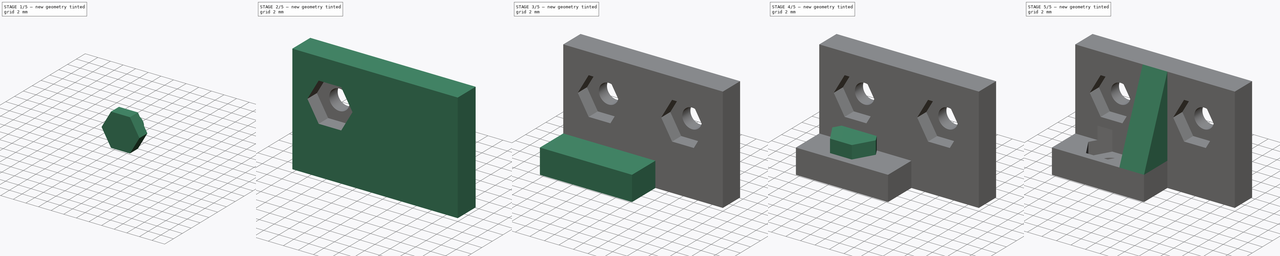
[diagram: build sequence overview — one tinted view per stage of 5, left to right]
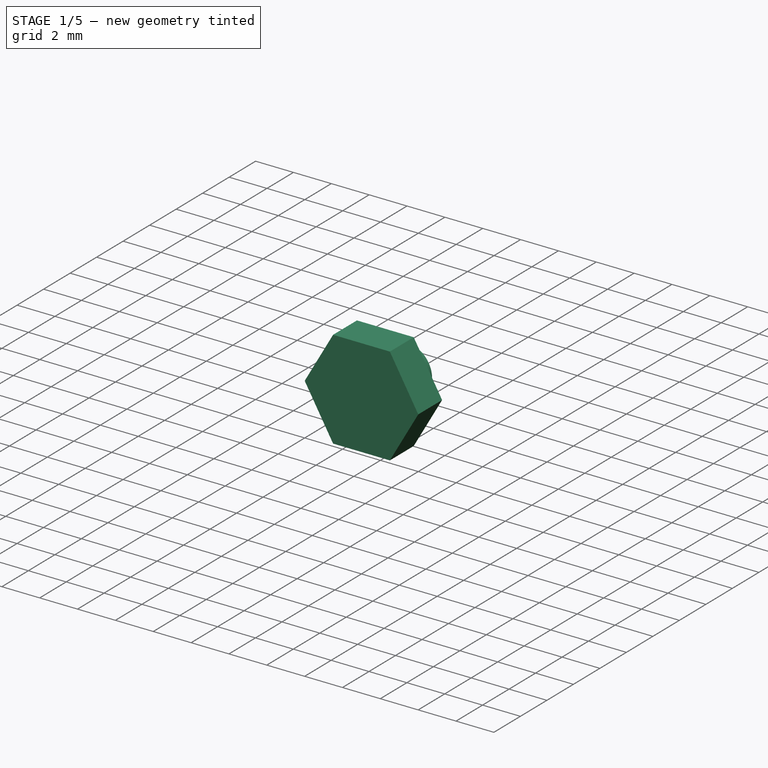
[diagram: stage 1 of 5 — iso view after this stage's code; geometry added in this stage tinted green]
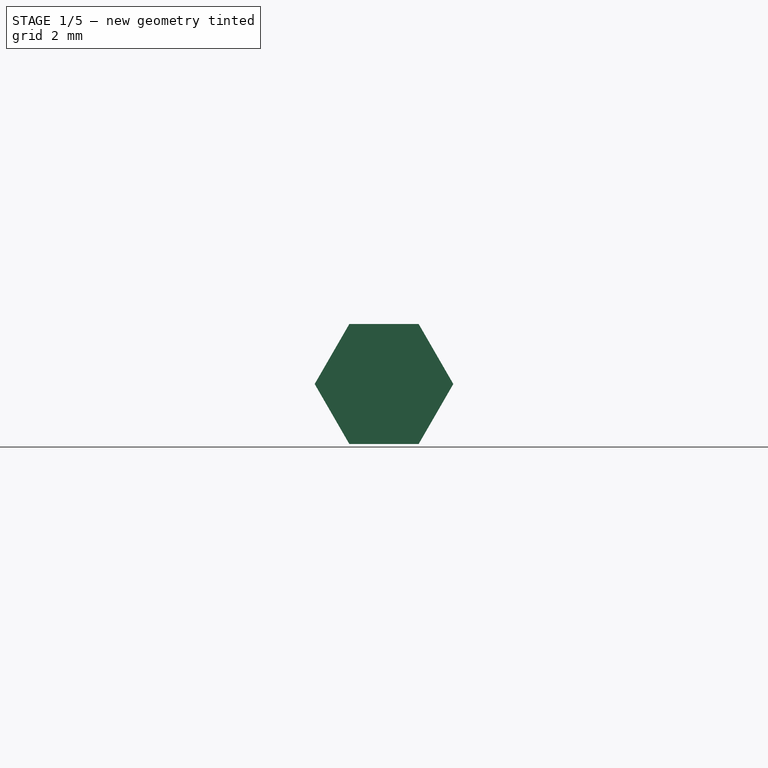
[diagram: stage 1 of 5 — front view after this stage's code; geometry added in this stage tinted green]
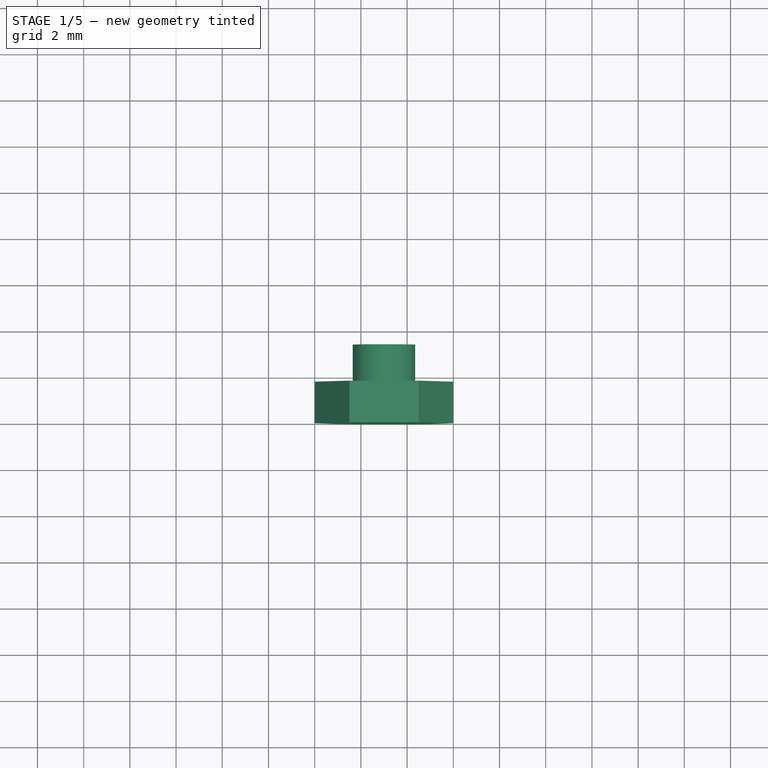
[diagram: stage 1 of 5 — top view after this stage's code; geometry added in this stage tinted green]
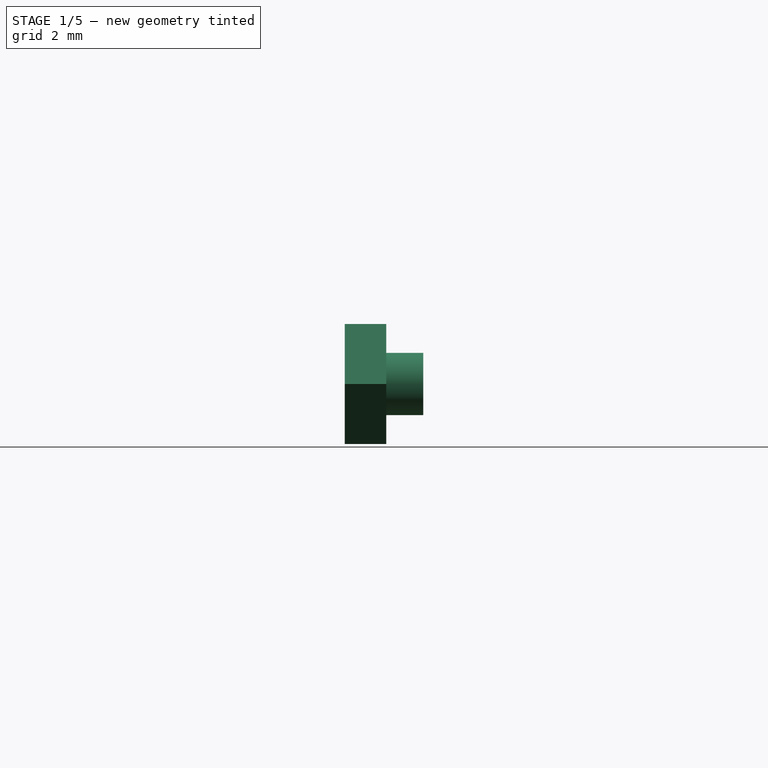
[diagram: stage 1 of 5 — right view after this stage's code; geometry added in this stage tinted green]
FCSTD DOCUMENT  (FreeCAD 0.20R29410 (Git))
Label: Podule Bracket Left Hand Side 3.4mm Thick - Wider Hex - 0.5mm Offset
License: All rights reserved
LicenseURL: http://en.wikipedia.org/wiki/All_rights_reserved
objects: Part::MultiFuse×5, Sketcher::SketchObject×4, Part::Extrusion×4, Part::Cylinder×3, Part::Cut×3, Part::Box×2, App::Part×1
note: 21 computed .brp shape members not serialized (recipe doc carries the construction recipe); baked Part::Feature solids carry a one-line shape summary decoded from their .brp

FEATURE [Part::Cylinder] Cylinder
  Angle = 360
  AttacherType = Attacher::AttachEngine3D
  FirstAngle = 0
  Height = 3.4
  Placement = pos=(5,3.4,9) rot=(1,0,0;1.5708rad)
  Radius = 1.35
  SecondAngle = 0
FEATURE [Sketcher::SketchObject] Sketch001
  FullyConstrained = false
  Placement = pos=(5,1.8,9) rot=(1,0,0;1.5708rad)
  sketch-geometry (7):
    g0: LineSegment StartX=3 StartY=0 StartZ=0 EndX=1.5 EndY=2.59808 EndZ=0
    g1: LineSegment StartX=1.5 StartY=2.59808 StartZ=0 EndX=-1.5 EndY=2.59808 EndZ=0
    g2: LineSegment StartX=-1.5 StartY=2.59808 StartZ=0 EndX=-3 EndY=0 EndZ=0
    g3: LineSegment StartX=-3 StartY=0 StartZ=0 EndX=-1.5 EndY=-2.59808 EndZ=0
    g4: LineSegment StartX=-1.5 StartY=-2.59808 StartZ=0 EndX=1.5 EndY=-2.59808 EndZ=0
    g5: LineSegment StartX=1.5 StartY=-2.59808 StartZ=0 EndX=3 EndY=0 EndZ=0
    g6: Circle CenterX=0 CenterY=0 CenterZ=0 NormalX=0 NormalY=0 NormalZ=1 AngleXU=0 Radius=3
  constraints (15):
    c: Coincident(g0,g1)
    c: Coincident(g1,g2)
    c: Coincident(g2,g3)
    c: Coincident(g3,g4)
    c: Coincident(g4,g5)
    c: Coincident(g5,g0)
    c: Equal(g0, g1-g5) x5
    c: PointOnObject(g0,g6)
    c: PointOnObject(g1,g6)
    c: PointOnObject(g2,g6)
    c: PointOnObject(g3,g6)
    c: PointOnObject(g4,g6)
    c: PointOnObject(g5,g6)
    c: Coincident(g6,g-1)
    c: PointOnObject(g5,g-1)
FEATURE [Part::Extrusion] Extrude001
  Base = -> Sketch001
  Dir = (0,-1,-3e-16)
  DirMode = 2
  FaceMakerClass = Part::FaceMakerBullseye
  LengthFwd = 1.8
  LengthRev = 0
  Solid = true
  Symmetric = false
FEATURE [App::Part] Part
  Group = -> [Box,Box001,Sketch,Extrude,Cylinder,Cylinder002,Sketch001,Extrude001]
  Origin = -> Origin
FEATURE [Part::MultiFuse] Fusion  label="Hole01"
  Shapes = -> [Cylinder,Extrude001]
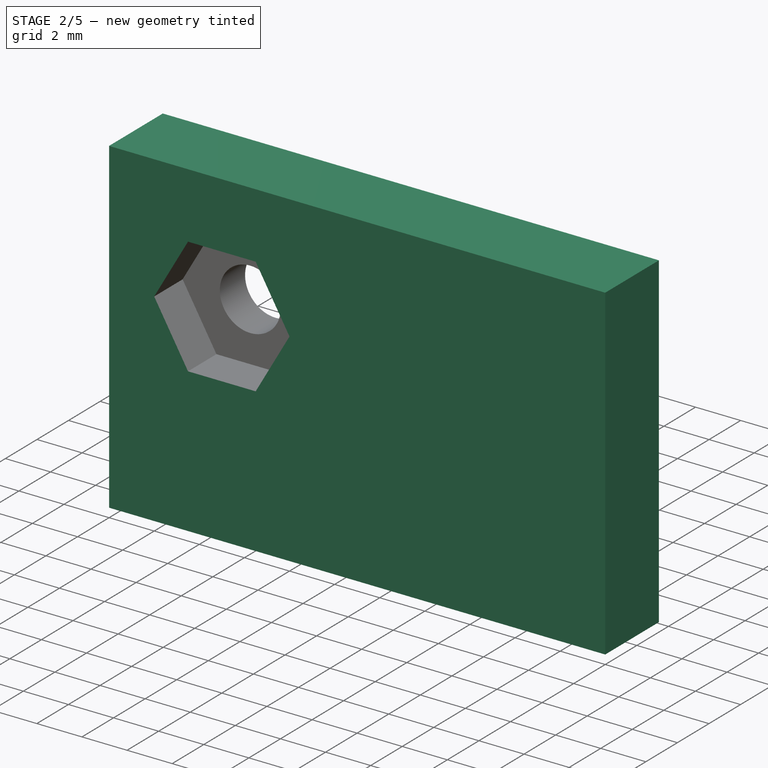
[diagram: stage 2 of 5 — iso view after this stage's code; geometry added in this stage tinted green]
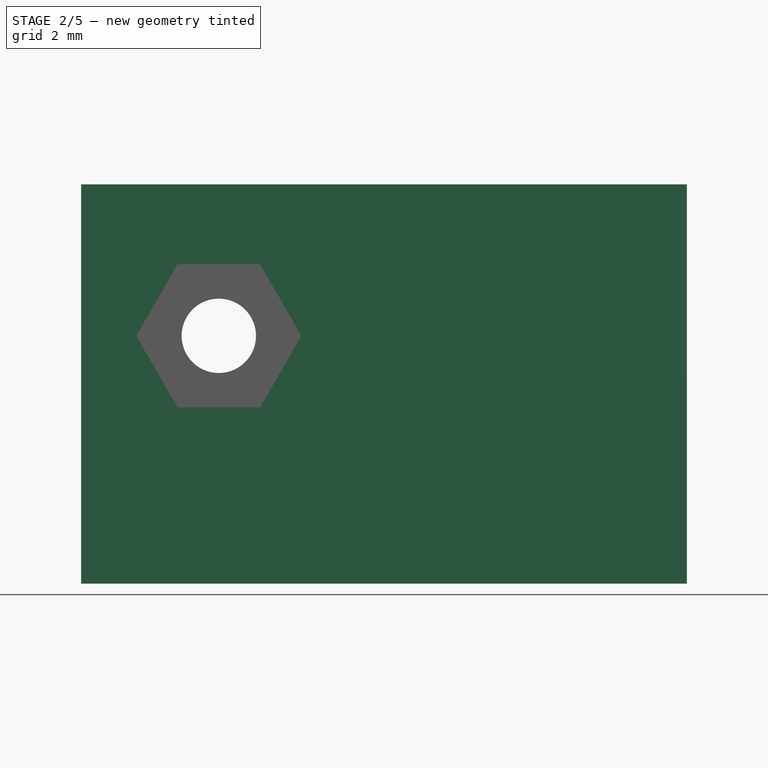
[diagram: stage 2 of 5 — front view after this stage's code; geometry added in this stage tinted green]
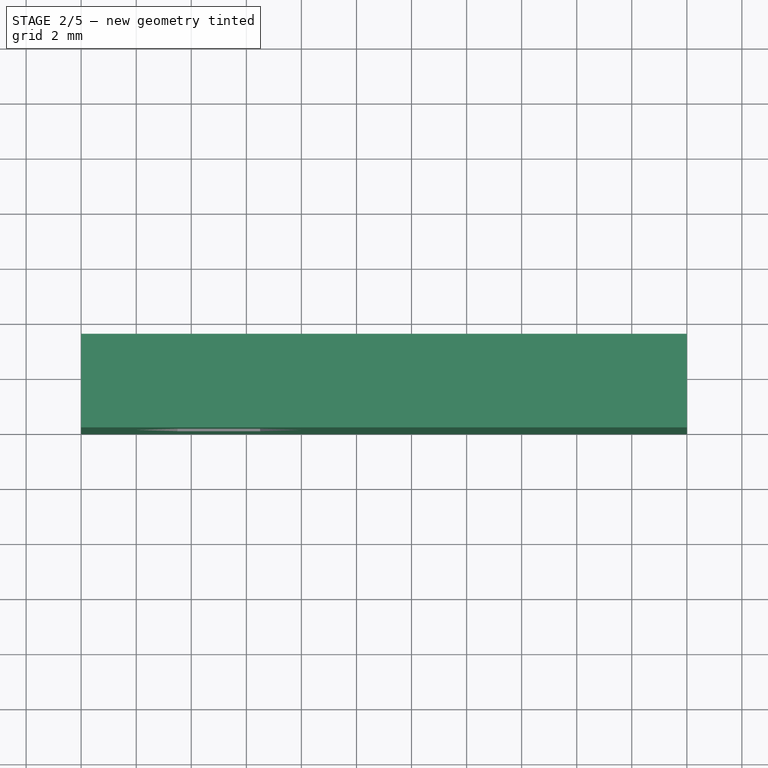
[diagram: stage 2 of 5 — top view after this stage's code; geometry added in this stage tinted green]
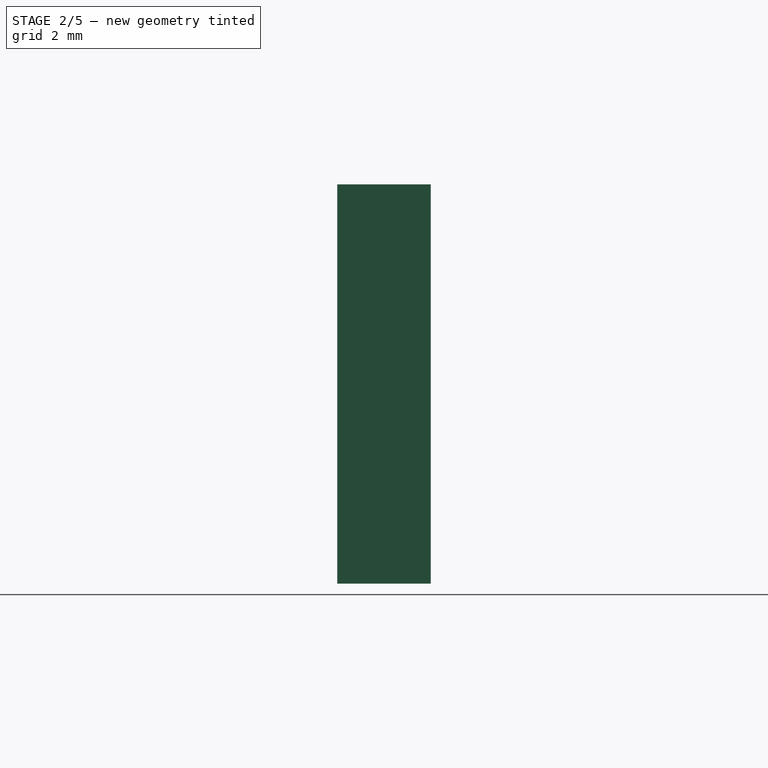
[diagram: stage 2 of 5 — right view after this stage's code; geometry added in this stage tinted green]
FEATURE [Part::Box] Box  label="Rear Face"
  AttacherType = Attacher::AttachEngine3D
  Height = 14.5
  Length = 22
  Width = 3.4
FEATURE [Part::Cylinder] Cylinder003
  Angle = 360
  AttacherType = Attacher::AttachEngine3D
  FirstAngle = 0
  Height = 3.4
  Placement = pos=(16.5,3.4,9) rot=(1,0,0;1.5708rad)
  Radius = 1.35
  SecondAngle = 0
FEATURE [Sketcher::SketchObject] Sketch002
  FullyConstrained = false
  Placement = pos=(16.5,1.8,9) rot=(1,0,0;1.5708rad)
  sketch-geometry (7):
    g0: LineSegment StartX=3 StartY=0 StartZ=0 EndX=1.5 EndY=2.59808 EndZ=0
    g1: LineSegment StartX=1.5 StartY=2.59808 StartZ=0 EndX=-1.5 EndY=2.59808 EndZ=0
    g2: LineSegment StartX=-1.5 StartY=2.59808 StartZ=0 EndX=-3 EndY=0 EndZ=0
    g3: LineSegment StartX=-3 StartY=0 StartZ=0 EndX=-1.5 EndY=-2.59808 EndZ=0
    g4: LineSegment StartX=-1.5 StartY=-2.59808 StartZ=0 EndX=1.5 EndY=-2.59808 EndZ=0
    g5: LineSegment StartX=1.5 StartY=-2.59808 StartZ=0 EndX=3 EndY=0 EndZ=0
    g6: Circle CenterX=0 CenterY=0 CenterZ=0 NormalX=0 NormalY=0 NormalZ=1 AngleXU=0 Radius=3
  constraints (15):
    c: Coincident(g0,g1)
    c: Coincident(g1,g2)
    c: Coincident(g2,g3)
    c: Coincident(g3,g4)
    c: Coincident(g4,g5)
    c: Coincident(g5,g0)
    c: Equal(g0, g1-g5) x5
    c: PointOnObject(g0,g6)
    c: PointOnObject(g1,g6)
    c: PointOnObject(g2,g6)
    c: PointOnObject(g3,g6)
    c: PointOnObject(g4,g6)
    c: PointOnObject(g5,g6)
    c: Coincident(g6,g-1)
    c: PointOnObject(g5,g-1)
FEATURE [Part::Extrusion] Extrude002
  Base = -> Sketch002
  Dir = (0,-1,2e-16)
  DirMode = 2
  FaceMakerClass = Part::FaceMakerBullseye
  LengthFwd = 1.8
  LengthRev = 0
  Solid = true
  Symmetric = false
FEATURE [Part::Cut] Cut
  Base = -> Box
  Tool = -> Fusion
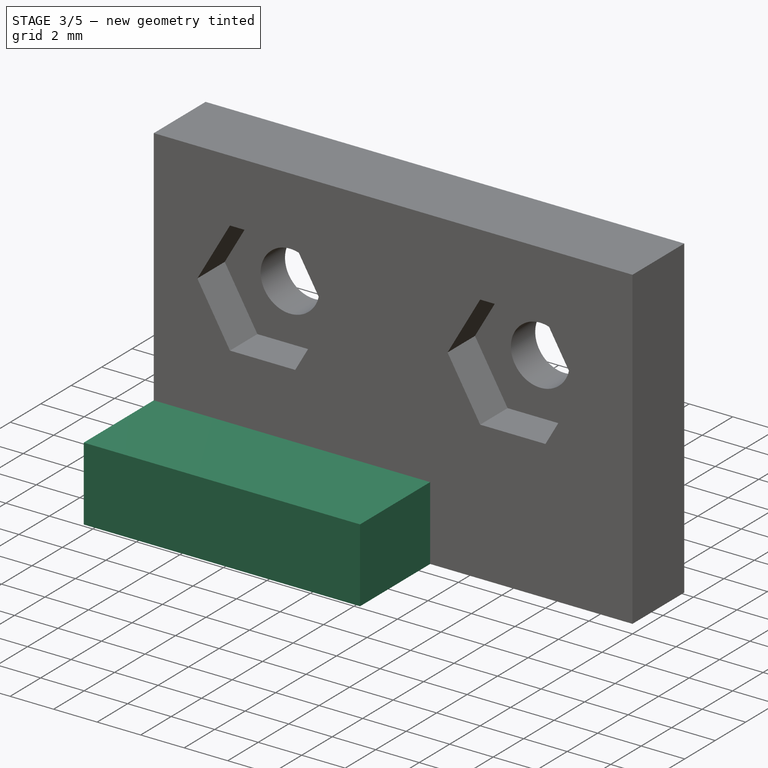
[diagram: stage 3 of 5 — iso view after this stage's code; geometry added in this stage tinted green]
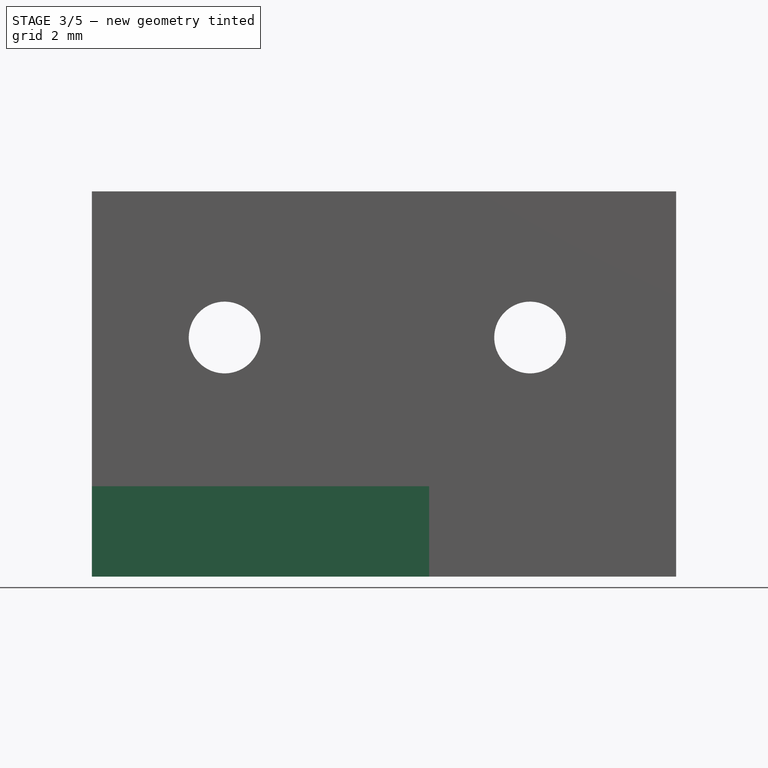
[diagram: stage 3 of 5 — front view after this stage's code; geometry added in this stage tinted green]
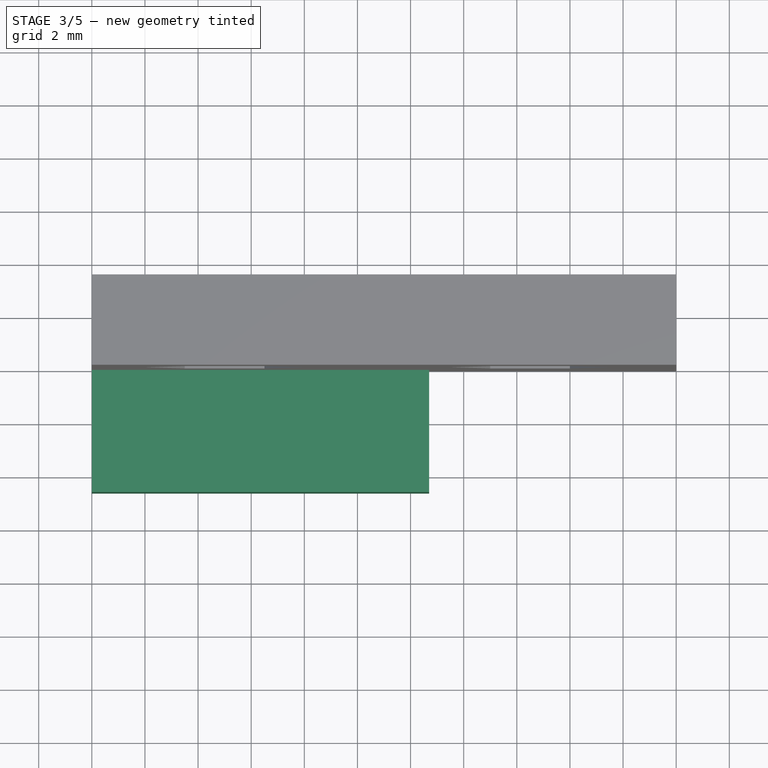
[diagram: stage 3 of 5 — top view after this stage's code; geometry added in this stage tinted green]
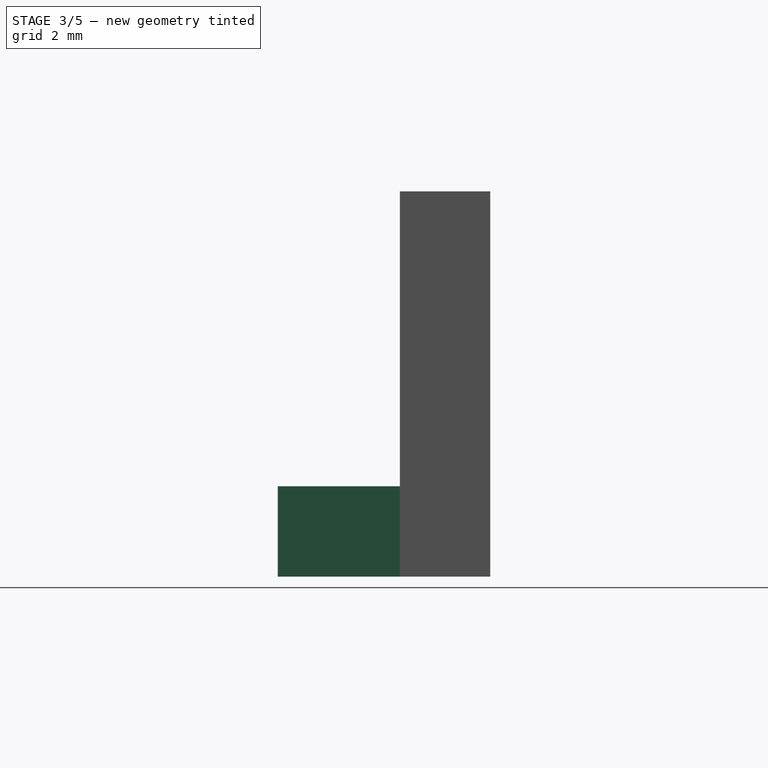
[diagram: stage 3 of 5 — right view after this stage's code; geometry added in this stage tinted green]
FEATURE [Part::Box] Box001  label="Bottom Face"
  AttacherType = Attacher::AttachEngine3D
  Height = 3.4
  Length = 12.7
  Placement = pos=(0,-4.6,0) rot=(0,0,1;0rad)
  Width = 4.6
FEATURE [Part::MultiFuse] Fusion001  label="Hole02"
  Shapes = -> [Cylinder003,Extrude002]
FEATURE [Part::Cut] Cut001
  Base = -> Cut
  Tool = -> Fusion001
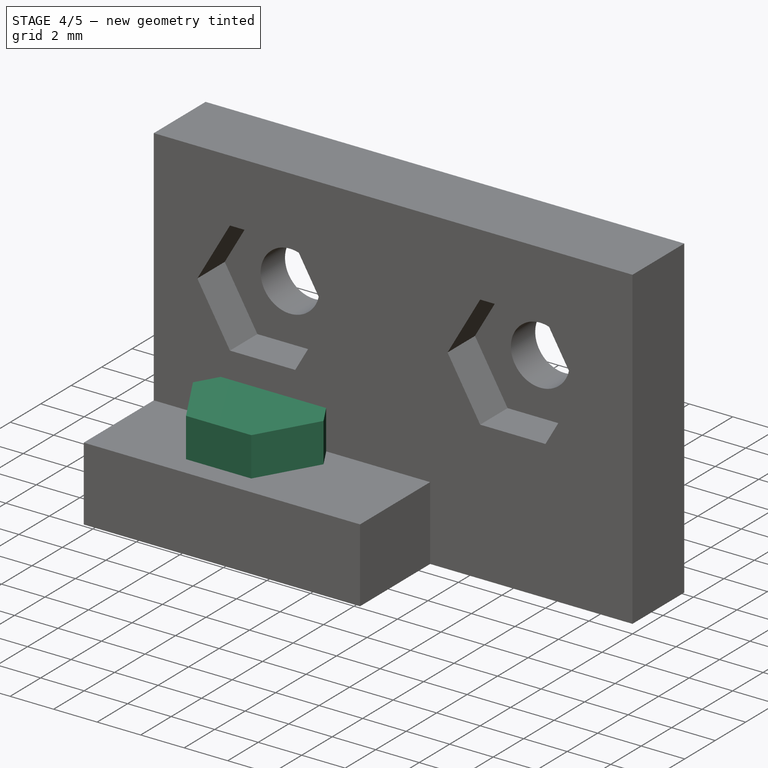
[diagram: stage 4 of 5 — iso view after this stage's code; geometry added in this stage tinted green]
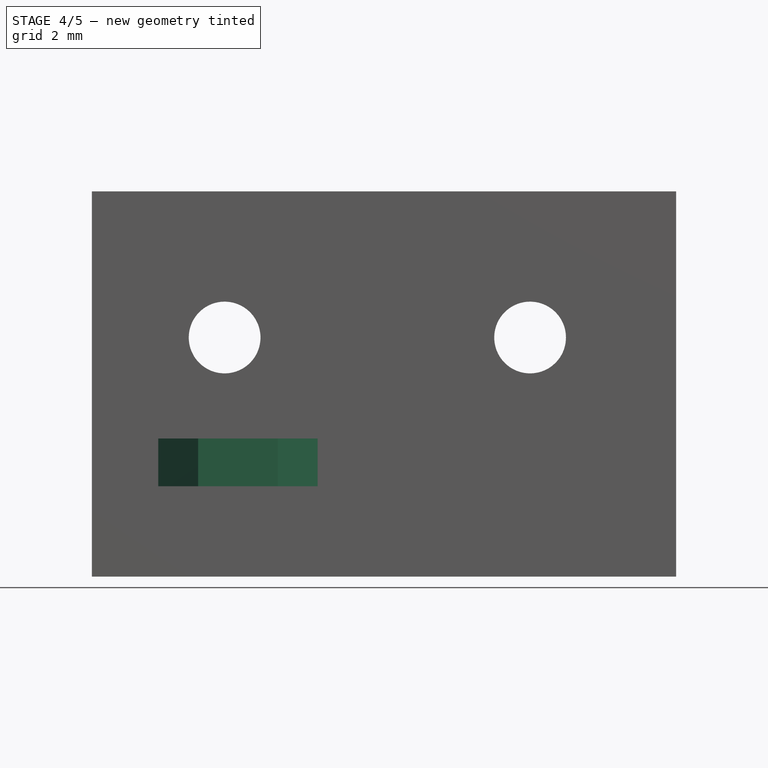
[diagram: stage 4 of 5 — front view after this stage's code; geometry added in this stage tinted green]
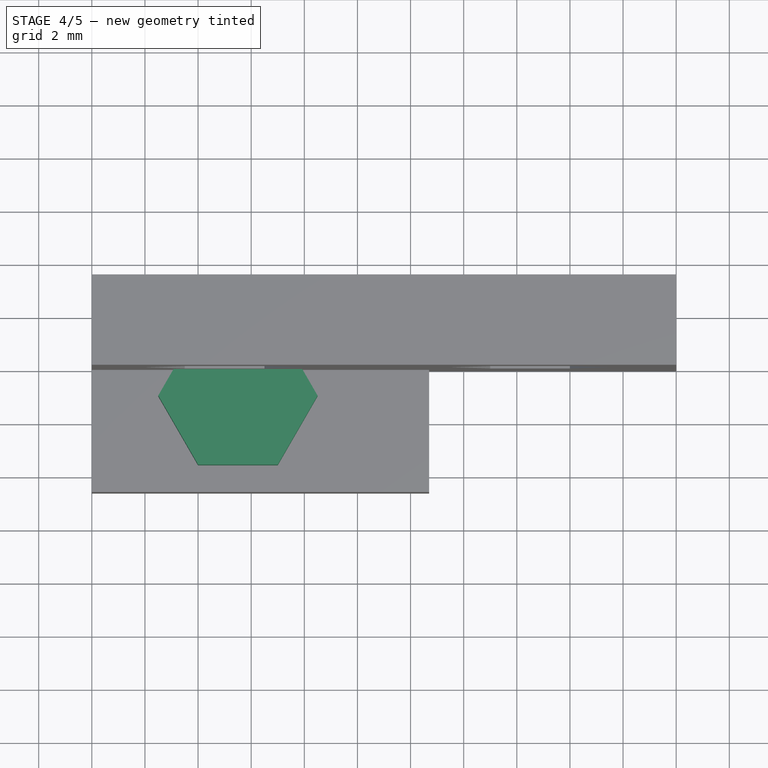
[diagram: stage 4 of 5 — top view after this stage's code; geometry added in this stage tinted green]
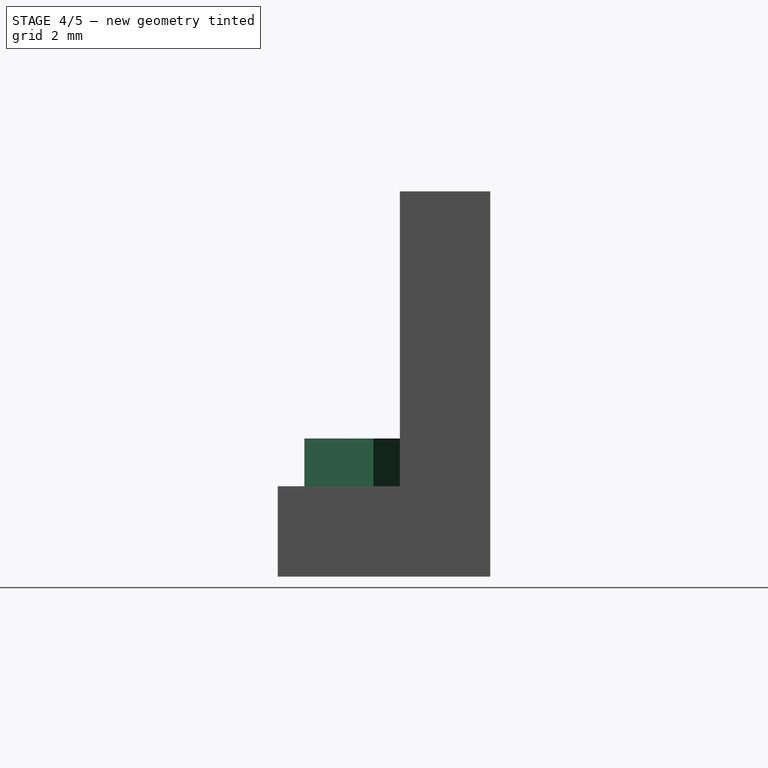
[diagram: stage 4 of 5 — right view after this stage's code; geometry added in this stage tinted green]
FEATURE [Part::Cylinder] Cylinder002
  Angle = 360
  AttacherType = Attacher::AttachEngine3D
  FirstAngle = 0
  Height = 3.4
  Placement = pos=(5.5,-1,0) rot=(0,0,1;1.5708rad)
  Radius = 1.35
  SecondAngle = 0
FEATURE [Sketcher::SketchObject] Sketch003
  FullyConstrained = false
  Placement = pos=(5.5,-1,1.6) rot=(0,0,1;0rad)
  sketch-geometry (7):
    g0: LineSegment StartX=3 StartY=0 StartZ=0 EndX=1.5 EndY=2.59808 EndZ=0
    g1: LineSegment StartX=1.5 StartY=2.59808 StartZ=0 EndX=-1.5 EndY=2.59808 EndZ=0
    g2: LineSegment StartX=-1.5 StartY=2.59808 StartZ=0 EndX=-3 EndY=0 EndZ=0
    g3: LineSegment StartX=-3 StartY=0 StartZ=0 EndX=-1.5 EndY=-2.59808 EndZ=0
    g4: LineSegment StartX=-1.5 StartY=-2.59808 StartZ=0 EndX=1.5 EndY=-2.59808 EndZ=0
    g5: LineSegment StartX=1.5 StartY=-2.59808 StartZ=0 EndX=3 EndY=0 EndZ=0
    g6: Circle CenterX=0 CenterY=0 CenterZ=0 NormalX=0 NormalY=0 NormalZ=1 AngleXU=0 Radius=3
  constraints (15):
    c: Coincident(g0,g1)
    c: Coincident(g1,g2)
    c: Coincident(g2,g3)
    c: Coincident(g3,g4)
    c: Coincident(g4,g5)
    c: Coincident(g5,g0)
    c: Equal(g0, g1-g5) x5
    c: PointOnObject(g0,g6)
    c: PointOnObject(g1,g6)
    c: PointOnObject(g2,g6)
    c: PointOnObject(g3,g6)
    c: PointOnObject(g4,g6)
    c: PointOnObject(g5,g6)
    c: Coincident(g6,g-1)
    c: PointOnObject(g5,g-1)
FEATURE [Part::Extrusion] Extrude003
  Base = -> Sketch003
  Dir = (0,0,1)
  DirMode = 2
  FaceMakerClass = Part::FaceMakerBullseye
  LengthFwd = 3.6
  LengthRev = 0
  Solid = true
  Symmetric = false
FEATURE [Part::MultiFuse] Fusion002  label="Hole03"
  Shapes = -> [Cylinder002,Extrude003]
FEATURE [Part::MultiFuse] Fusion003
  Shapes = -> [Box001,Cut001]
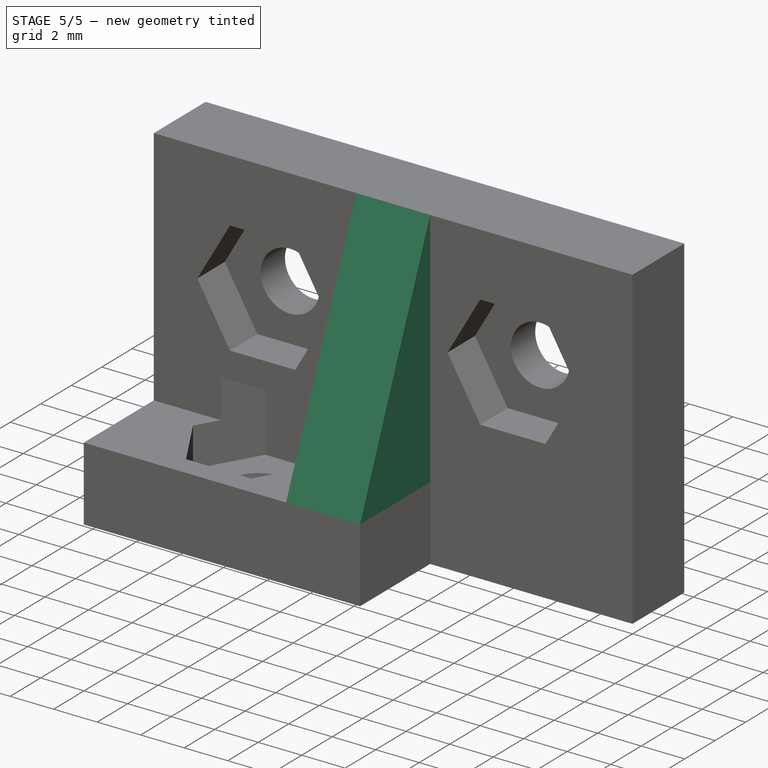
[diagram: stage 5 of 5 — iso view after this stage's code; geometry added in this stage tinted green]
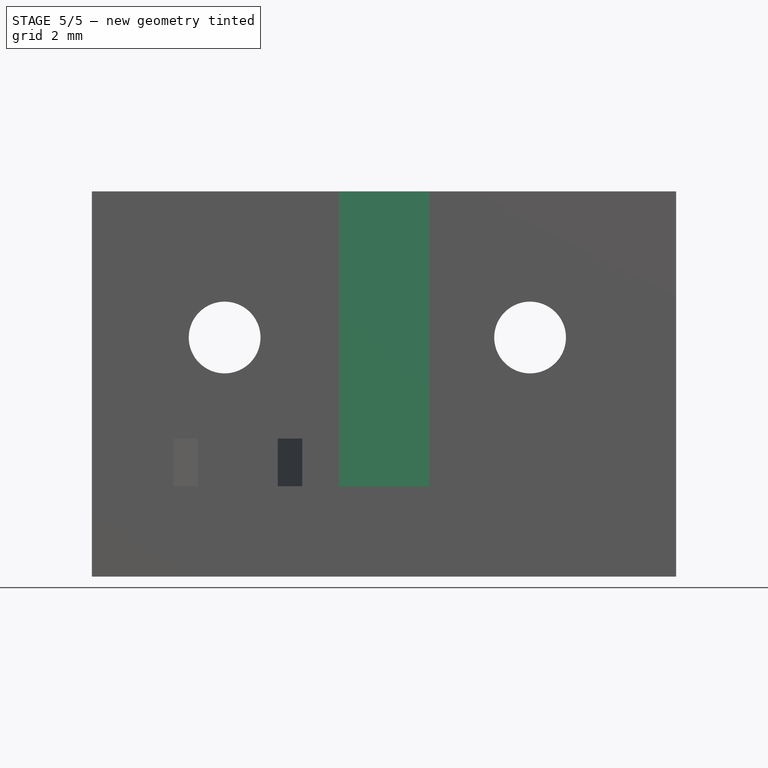
[diagram: stage 5 of 5 — front view after this stage's code; geometry added in this stage tinted green]
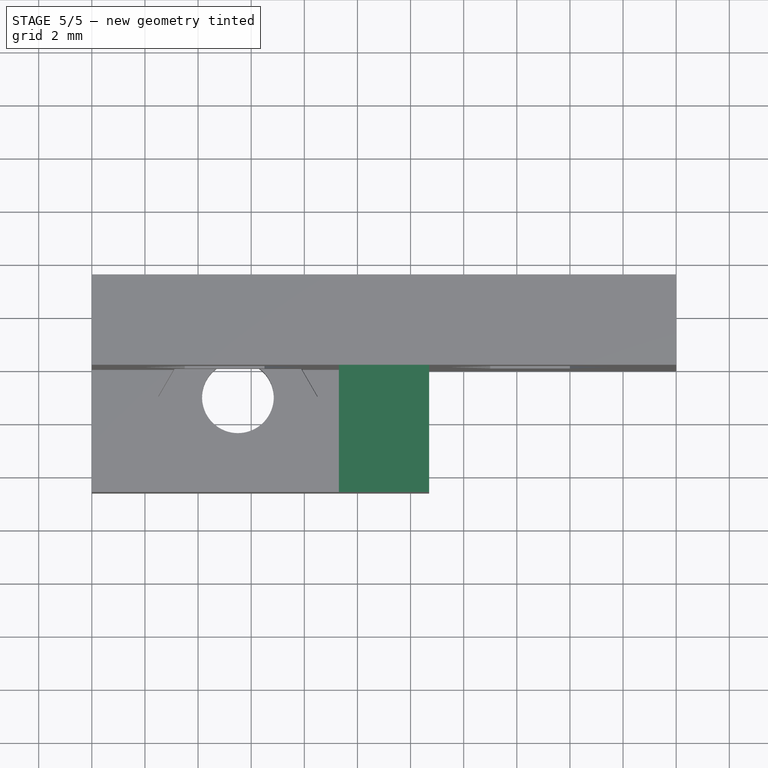
[diagram: stage 5 of 5 — top view after this stage's code; geometry added in this stage tinted green]
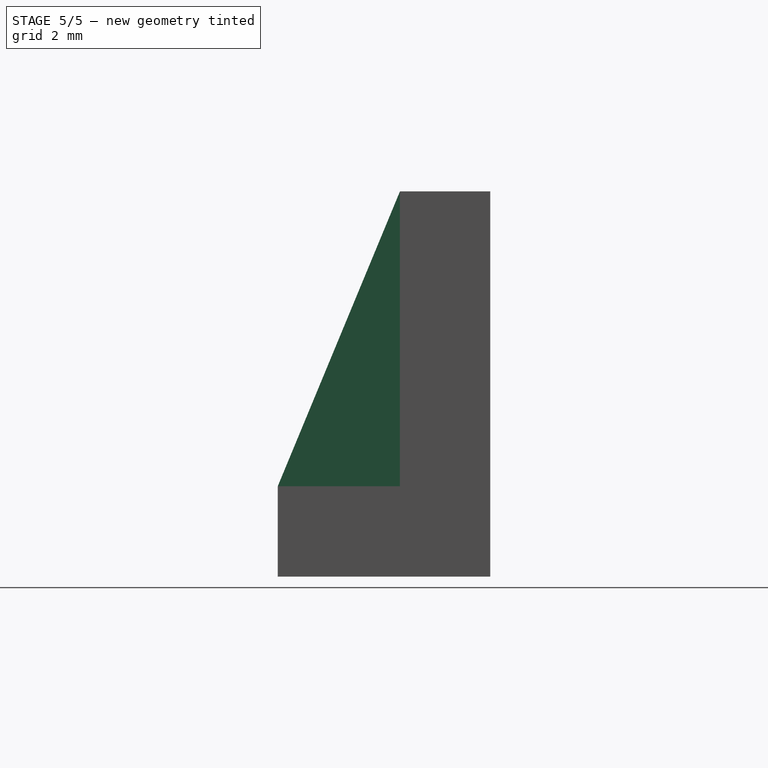
[diagram: stage 5 of 5 — right view after this stage's code; geometry added in this stage tinted green]
FEATURE [Sketcher::SketchObject] Sketch
  FullyConstrained = true
  Placement = pos=(0,0,3.4) rot=(0.57735,0.57735,0.57735;2.0944rad)
  sketch-geometry (3):
    g0: LineSegment StartX=0 StartY=11.1 StartZ=0 EndX=0 EndY=0 EndZ=0
    g1: LineSegment StartX=0 StartY=0 StartZ=0 EndX=-4.6 EndY=0 EndZ=0
    g2: LineSegment StartX=-4.6 StartY=0 StartZ=0 EndX=0 EndY=11.1 EndZ=0
  constraints (8):
    c: PointOnObject(g0,g-2)
    c: Coincident(g0,g-1)
    c: Coincident(g1,g0)
    c: PointOnObject(g1,g-1)
    c: Coincident(g2,g1)
    c: Coincident(g2,g0)
    c: Distance(g0) = 11.1
    c: Distance(g1) = 4.6
FEATURE [Part::Extrusion] Extrude  label="Fillet"
  Base = -> Sketch
  Dir = (1,-2e-16,2e-16)
  DirMode = 2
  FaceMakerClass = Part::FaceMakerBullseye
  LengthFwd = 3.4
  LengthRev = 0
  Placement = pos=(9.3,0,0) rot=(0,0,1;0rad)
  Solid = true
  Symmetric = false
FEATURE [Part::Cut] Cut002
  Base = -> Fusion003
  Tool = -> Fusion002
FEATURE [Part::MultiFuse] Fusion004  label="Left Hand Bracket"
  Shapes = -> [Extrude,Cut002]
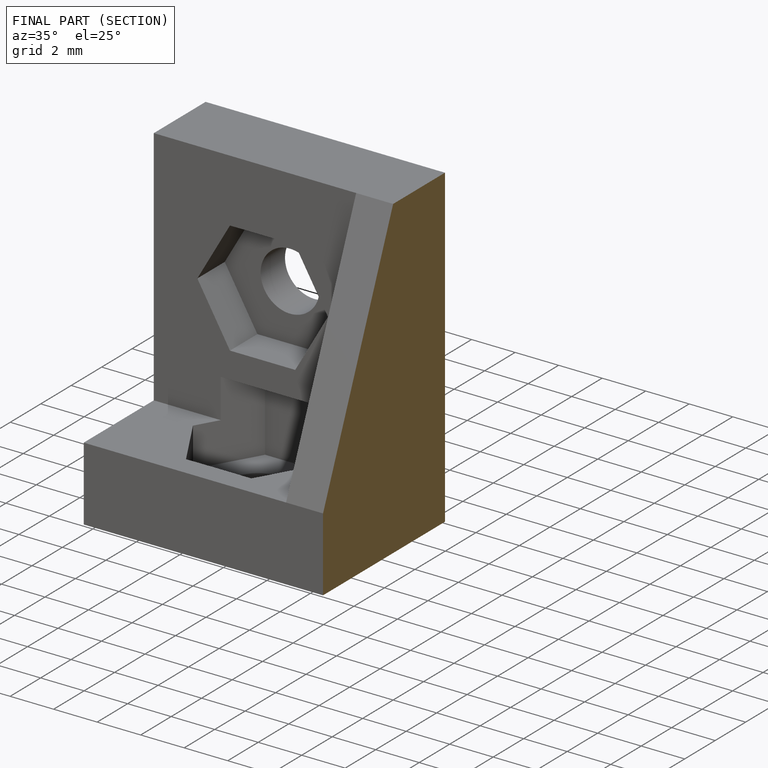
[diagram: finished part — half-section view (interior)]
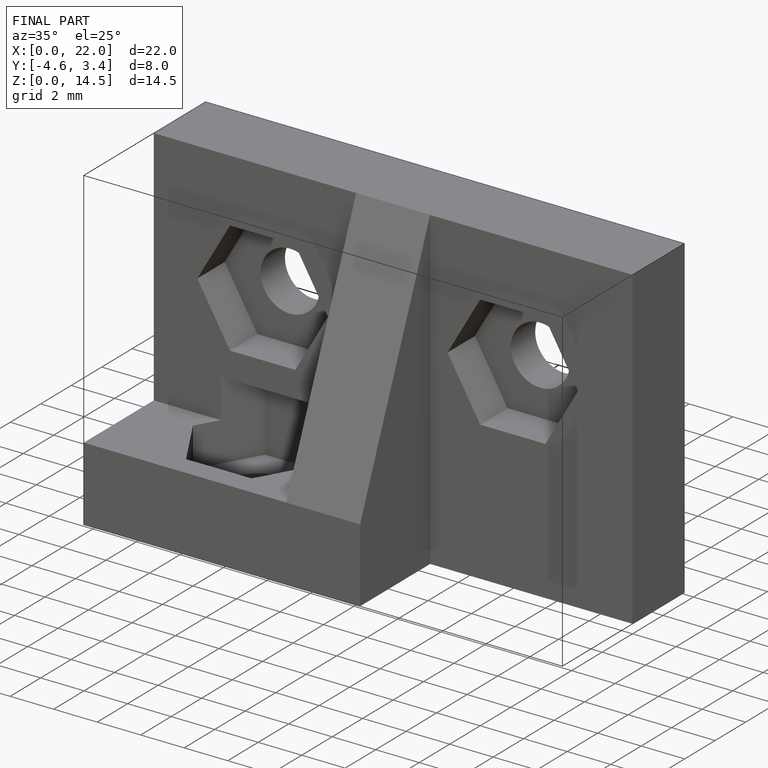
[diagram: finished part — iso view with bounding-box wireframe]
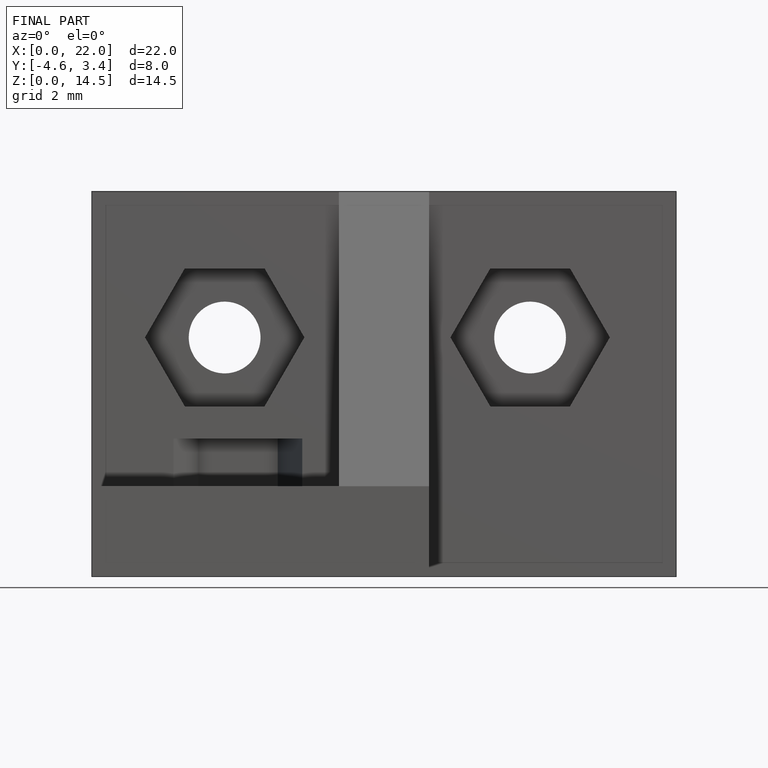
[diagram: finished part — front view with bounding-box wireframe]
